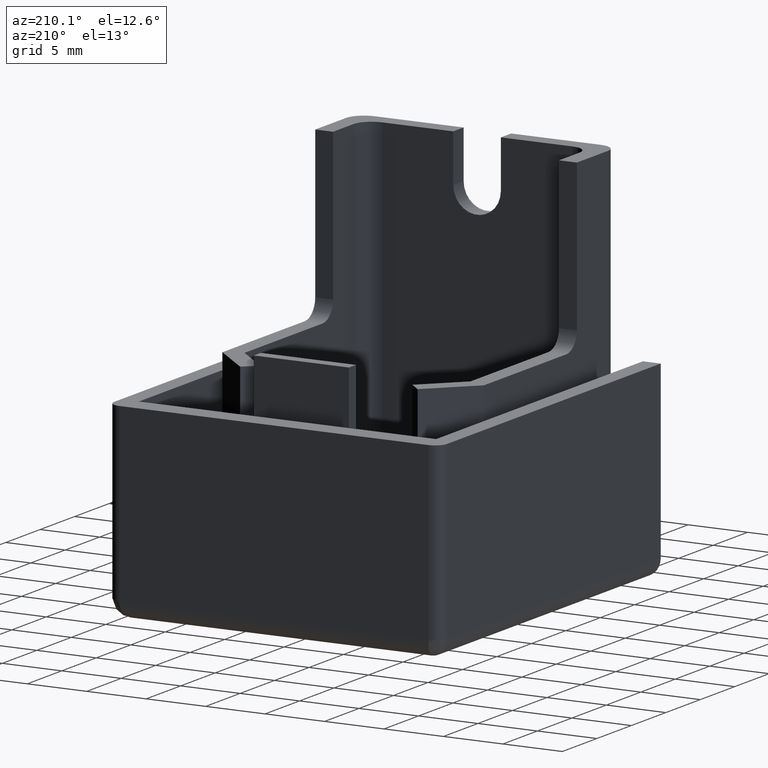
[diagram: clean part render]
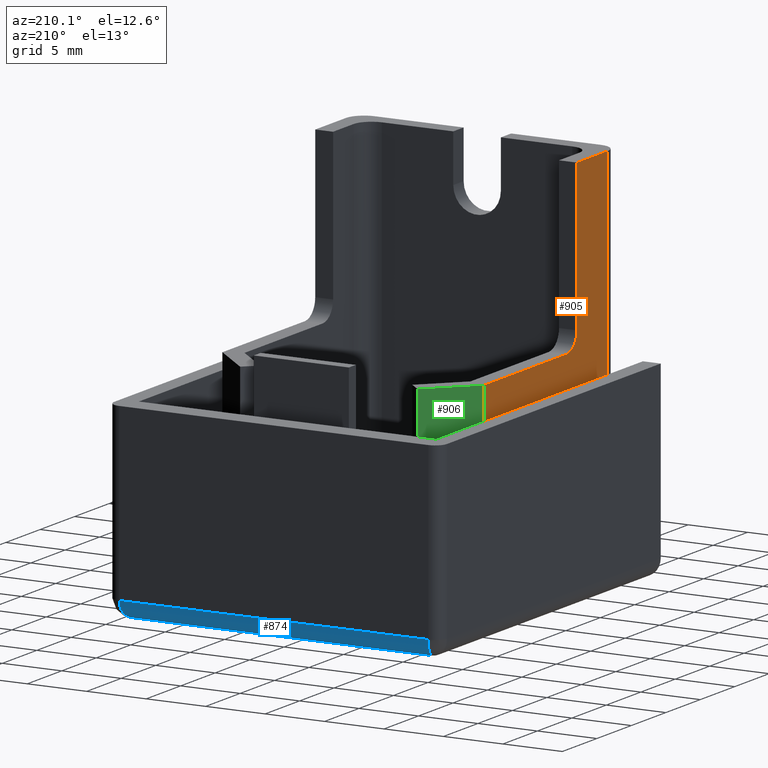
[diagram: same view with three faces highlighted in distinct colors, each labeled with its STEP entity id]
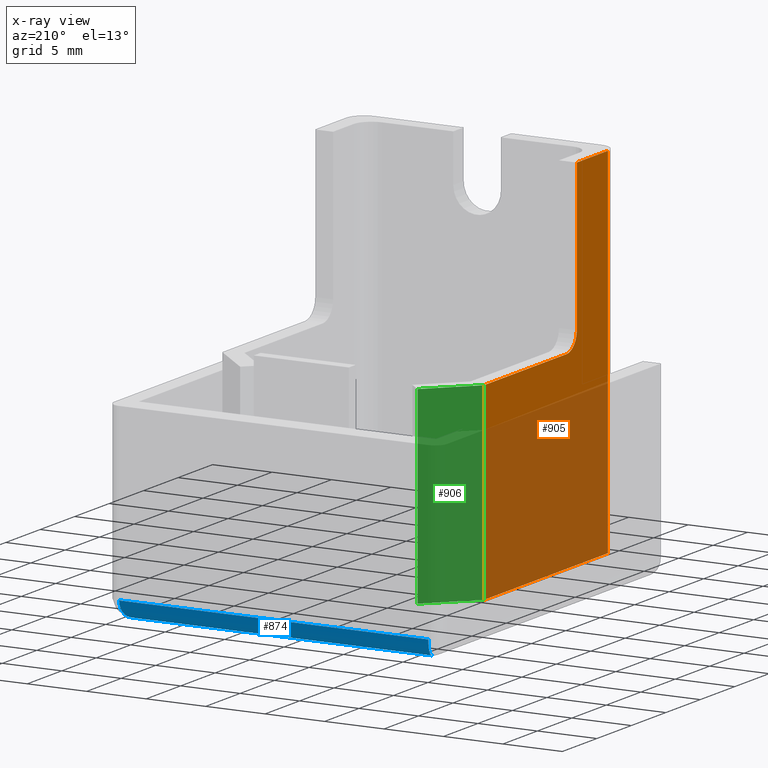
[diagram: x-ray of the same camera — body ghosted, the three highlighted faces saturated]
A machine part, auxiliary view with three faces highlighted in distinct colors.
The next image is the same camera in x-ray (body ghosted, the three faces saturated) — at least one of them is partly hidden behind the body in this view.
Their STEP definitions:

[orange] entity #905 — the highlighted planar face has unit normal (-1, -0, 0).
#39=PLANE('',#976);
#108=LINE('',#1450,#213);
#113=LINE('',#1461,#218);
#116=LINE('',#1467,#221);
#129=LINE('',#1502,#234);
#136=LINE('',#1517,#241);
#137=LINE('',#1518,#242);
#213=VECTOR('',#1121,17.9644660940673);
#218=VECTOR('',#1130,30.);
#221=VECTOR('',#1135,4.49999999999998);
#234=VECTOR('',#1172,12.5);
#241=VECTOR('',#1189,11.9644660940673);
#242=VECTOR('',#1190,16.);
#308=FACE_OUTER_BOUND('',#359,.T.);
#359=EDGE_LOOP('',(#795,#796,#797,#798,#799,#800,#801));
#390=CIRCLE('',#969,1.5);
#452=VERTEX_POINT('',#1447);
#453=VERTEX_POINT('',#1449);
#457=VERTEX_POINT('',#1459);
#459=VERTEX_POINT('',#1465);
#466=VERTEX_POINT('',#1493);
#467=VERTEX_POINT('',#1494);
#472=VERTEX_POINT('',#1516);
#555=EDGE_CURVE('',#452,#453,#108,.T.);
#561=EDGE_CURVE('',#457,#452,#113,.T.);
#564=EDGE_CURVE('',#459,#457,#116,.T.);
#577=EDGE_CURVE('',#466,#467,#390,.T.);
#581=EDGE_CURVE('',#467,#459,#129,.T.);
#588=EDGE_CURVE('',#472,#466,#136,.T.);
#589=EDGE_CURVE('',#453,#472,#137,.T.);
#795=ORIENTED_EDGE('',*,*,#561,.F.);
#796=ORIENTED_EDGE('',*,*,#564,.F.);
#797=ORIENTED_EDGE('',*,*,#581,.F.);
#798=ORIENTED_EDGE('',*,*,#577,.F.);
#799=ORIENTED_EDGE('',*,*,#588,.F.);
#800=ORIENTED_EDGE('',*,*,#589,.F.);
#801=ORIENTED_EDGE('',*,*,#555,.F.);
#905=ADVANCED_FACE('',(#308),#39,.T.);
#969=AXIS2_PLACEMENT_3D('',#1495,#1164,#1165);
#976=AXIS2_PLACEMENT_3D('',#1515,#1187,#1188);
#1121=DIRECTION('',(-3.29823111252616E-16,1.,0.));
#1130=DIRECTION('',(0.,0.,-1.));
#1135=DIRECTION('',(3.7007434154172E-16,-1.,0.));
#1164=DIRECTION('center_axis',(-1.,-3.29823111252616E-16,0.));
#1165=DIRECTION('ref_axis',(2.09345661157836E-15,-0.707106781186546,-0.707106781186549));
#1172=DIRECTION('',(0.,0.,1.));
#1187=DIRECTION('center_axis',(-1.,-3.29823111252616E-16,0.));
#1188=DIRECTION('ref_axis',(3.5527136788005E-16,-1.,0.));
#1189=DIRECTION('',(3.29823111252616E-16,-1.,0.));
#1190=DIRECTION('',(0.,0.,1.));
#1447=CARTESIAN_POINT('',(-11.,-13.,-6.));
#1449=CARTESIAN_POINT('',(-11.,4.96446609406727,-6.));
#1450=CARTESIAN_POINT('',(-11.,2.23223304703363,-6.));
#1459=CARTESIAN_POINT('',(-11.,-13.,24.));
#1461=CARTESIAN_POINT('',(-11.,-13.,-6.));
#1465=CARTESIAN_POINT('',(-11.,-8.50000000000002,24.));
#1467=CARTESIAN_POINT('',(-11.,-8.50000000000002,24.));
#1493=CARTESIAN_POINT('',(-11.,-7.00000000000002,10.));
#1494=CARTESIAN_POINT('',(-11.,-8.50000000000002,11.5));
#1495=CARTESIAN_POINT('Origin',(-11.,-7.00000000000002,11.5));
#1502=CARTESIAN_POINT('',(-11.,-8.50000000000002,-6.));
#1515=CARTESIAN_POINT('Origin',(-11.,4.96446609406727,-6.));
#1516=CARTESIAN_POINT('',(-11.,4.96446609406727,10.));
#1517=CARTESIAN_POINT('',(-11.,4.96446609406727,10.));
#1518=CARTESIAN_POINT('',(-11.,4.96446609406727,-6.));

[blue] entity #874 — the highlighted cylindrical surface (edge-blend (fillet) strip) has radius 1.5 mm, axis along (1, 0, 0).
#54=LINE('',#1322,#159);
#55=LINE('',#1323,#160);
#159=VECTOR('',#1015,25.);
#160=VECTOR('',#1016,26.);
#263=CYLINDRICAL_SURFACE('',#930,1.5);
#277=FACE_OUTER_BOUND('',#326,.T.);
#326=EDGE_LOOP('',(#621,#622,#623,#624));
#395=ELLIPSE('',#923,1.58113883008419,1.5);
#396=ELLIPSE('',#925,1.58113883008419,1.5);
#399=VERTEX_POINT('',#1274);
#400=VERTEX_POINT('',#1276);
#401=VERTEX_POINT('',#1309);
#402=VERTEX_POINT('',#1310);
#483=EDGE_CURVE('',#399,#400,#395,.T.);
#485=EDGE_CURVE('',#401,#402,#396,.T.);
#491=EDGE_CURVE('',#399,#402,#54,.T.);
#492=EDGE_CURVE('',#401,#400,#55,.T.);
#621=ORIENTED_EDGE('',*,*,#483,.F.);
#622=ORIENTED_EDGE('',*,*,#491,.T.);
#623=ORIENTED_EDGE('',*,*,#485,.F.);
#624=ORIENTED_EDGE('',*,*,#492,.T.);
#874=ADVANCED_FACE('',(#277),#263,.T.);
#923=AXIS2_PLACEMENT_3D('',#1277,#997,#998);
#925=AXIS2_PLACEMENT_3D('',#1311,#1001,#1002);
#930=AXIS2_PLACEMENT_3D('',#1321,#1013,#1014);
#997=DIRECTION('center_axis',(0.948683298050513,-0.31622776601684,0.));
#998=DIRECTION('ref_axis',(0.31622776601684,0.948683298050513,0.));
#1001=DIRECTION('center_axis',(-0.948683298050514,-0.316227766016838,0.));
#1002=DIRECTION('ref_axis',(-0.316227766016838,0.948683298050514,0.));
#1013=DIRECTION('center_axis',(1.,0.,0.));
#1014=DIRECTION('ref_axis',(0.,0.707106781186547,-0.707106781186548));
#1015=DIRECTION('',(-1.,0.,0.));
#1016=DIRECTION('',(1.,0.,0.));
#1274=CARTESIAN_POINT('',(12.5,15.,-8.));
#1276=CARTESIAN_POINT('',(13.,16.5,-6.5));
#1277=CARTESIAN_POINT('Origin',(12.5,15.,-6.5));
#1309=CARTESIAN_POINT('',(-13.,16.5,-6.5));
#1310=CARTESIAN_POINT('',(-12.5,15.,-8.));
#1311=CARTESIAN_POINT('Origin',(-12.5,15.,-6.5));
#1321=CARTESIAN_POINT('Origin',(6.5,15.,-6.5));
#1322=CARTESIAN_POINT('',(6.5,15.,-8.));
#1323=CARTESIAN_POINT('',(6.5,16.5,-6.5));

[green] entity #906 — the highlighted planar face has unit normal (-0.7071, 0.7071, 0).
#40=PLANE('',#977);
#109=LINE('',#1452,#214);
#137=LINE('',#1518,#242);
#138=LINE('',#1521,#243);
#139=LINE('',#1522,#244);
#214=VECTOR('',#1122,4.99999999999999);
#242=VECTOR('',#1190,16.);
#243=VECTOR('',#1193,4.99999999999999);
#244=VECTOR('',#1194,16.);
#309=FACE_OUTER_BOUND('',#360,.T.);
#360=EDGE_LOOP('',(#802,#803,#804,#805));
#453=VERTEX_POINT('',#1449);
#454=VERTEX_POINT('',#1451);
#472=VERTEX_POINT('',#1516);
#473=VERTEX_POINT('',#1520);
#556=EDGE_CURVE('',#453,#454,#109,.T.);
#589=EDGE_CURVE('',#453,#472,#137,.T.);
#590=EDGE_CURVE('',#473,#472,#138,.T.);
#591=EDGE_CURVE('',#454,#473,#139,.T.);
#802=ORIENTED_EDGE('',*,*,#556,.F.);
#803=ORIENTED_EDGE('',*,*,#589,.T.);
#804=ORIENTED_EDGE('',*,*,#590,.F.);
#805=ORIENTED_EDGE('',*,*,#591,.F.);
#906=ADVANCED_FACE('',(#309),#40,.T.);
#977=AXIS2_PLACEMENT_3D('',#1519,#1191,#1192);
#1122=DIRECTION('',(0.707106781186548,0.707106781186548,0.));
#1190=DIRECTION('',(0.,0.,1.));
#1191=DIRECTION('center_axis',(-0.707106781186548,0.707106781186548,0.));
#1192=DIRECTION('ref_axis',(-0.707106781186547,-0.707106781186548,0.));
#1193=DIRECTION('',(-0.707106781186548,-0.707106781186548,0.));
#1194=DIRECTION('',(0.,0.,1.));
#1449=CARTESIAN_POINT('',(-11.,4.96446609406727,-6.));
#1451=CARTESIAN_POINT('',(-7.46446609406727,8.5,-6.));
#1452=CARTESIAN_POINT('',(-7.84834957055045,8.11611652351682,-6.));
#1516=CARTESIAN_POINT('',(-11.,4.96446609406727,10.));
#1518=CARTESIAN_POINT('',(-11.,4.96446609406727,-6.));
#1519=CARTESIAN_POINT('Origin',(-7.46446609406727,8.5,-6.));
#1520=CARTESIAN_POINT('',(-7.46446609406727,8.5,10.));
#1521=CARTESIAN_POINT('',(-7.46446609406727,8.5,10.));
#1522=CARTESIAN_POINT('',(-7.46446609406727,8.5,-6.));